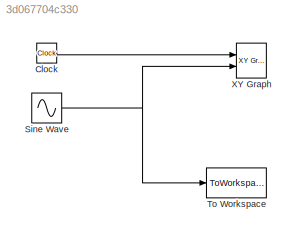
MODEL slx_3d067704c330
KIND model
BLOCK [Clock] Clock
BLOCK [Sin] Sine Wave
  Amplitude = 3
  Frequency = 5*2*pi
  Ports = [0, 1]
  SampleTime = 0
BLOCK [ToWorkspace] To Workspace
  MaxDataPoints = inf
  Ports = [1]
  SampleTime = -1
  VariableName = simout
BLOCK [Reference] XY Graph  REF=simulink/Sinks/XY Graph
  Ports = [2]
  SourceBlock = simulink/Sinks/XY Graph
  SourceType = XY scope.
  st = -1
  xmax = 1
  xmin = 0
  ymax = 3
  ymin = -3
LINE Clock:1 -> XY Graph:1
NET Sine Wave:1 -> To Workspace:1, XY Graph:2
note: NET lines group one-source signal fan-out (src -> all destinations, sorted); 1:1 wires keep LINE
